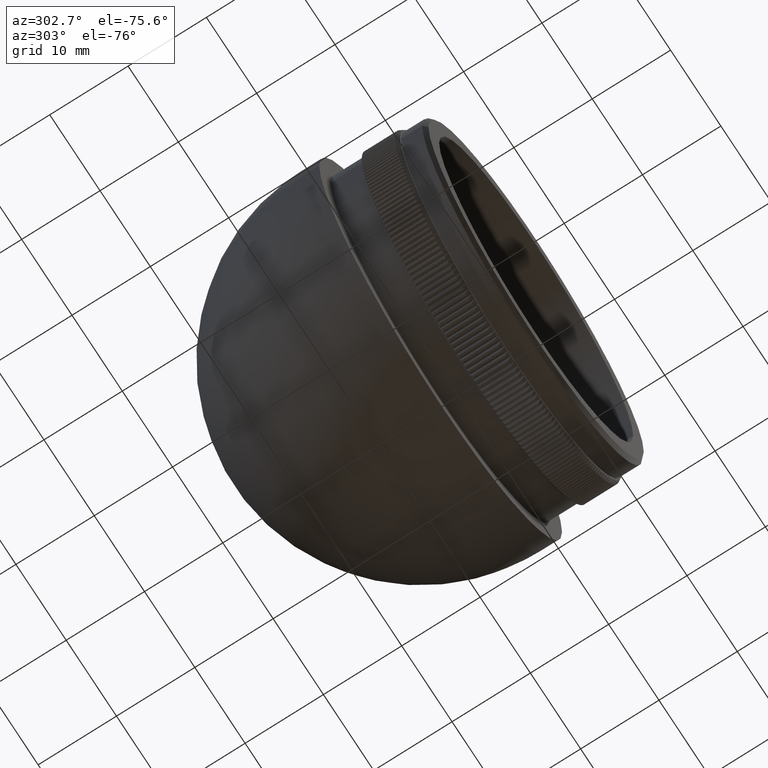
[diagram: clean part render]
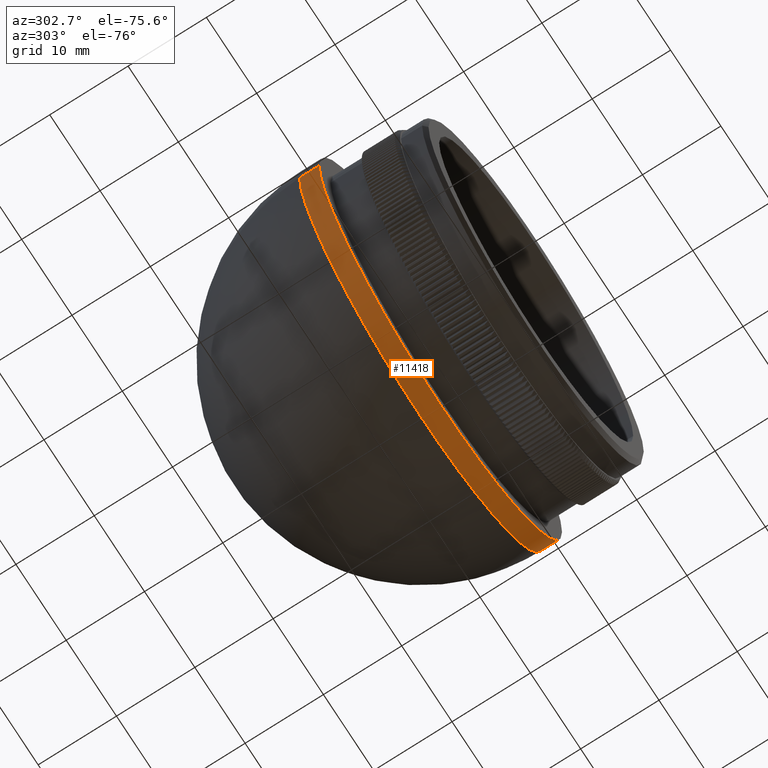
[diagram: same view with one face highlighted and labeled with its STEP entity id]
A machine part, auxiliary view. The second image highlights one B-rep face of the part: STEP entity #11418.
In plain terms, the highlighted cylindrical surface (partial cylindrical patch) has radius 24.15 mm, axis along (-0, -1, -0).
Its self-contained STEP definition (entity closure, byte-faithful):
#58 = CARTESIAN_POINT ( 'NONE',  ( -3.187359955546916400E-014, 12.20000000000003700, 0.0000000000000000000 ) ) ;
#2632 = CARTESIAN_POINT ( 'NONE',  ( 24.15000000000002000, 35.14999999999994900, 0.0000000000000000000 ) ) ;
#3267 = DIRECTION ( 'NONE',  ( -1.388827867340707400E-015, -1.000000000000000000, -0.0000000000000000000 ) ) ;
#3897 = DIRECTION ( 'NONE',  ( 1.000000000000000000, -1.364792796834753500E-015, 0.0000000000000000000 ) ) ;
#3922 = ORIENTED_EDGE ( 'NONE', *, *, #17600, .T. ) ;
#4550 = ORIENTED_EDGE ( 'NONE', *, *, #24849, .F. ) ;
#6245 = VERTEX_POINT ( 'NONE', #28163 ) ;
#7529 = VECTOR ( 'NONE', #24557, 1000.000000000000000 ) ;
#8160 = VERTEX_POINT ( 'NONE', #34861 ) ;
#8646 = CARTESIAN_POINT ( 'NONE',  ( -2.840152988711739300E-014, 14.70000000000004000, 0.0000000000000000000 ) ) ;
#10464 = CARTESIAN_POINT ( 'NONE',  ( -24.15000000000005500, 12.20000000000007000, 2.957522019940861500E-015 ) ) ;
#10511 = CYLINDRICAL_SURFACE ( 'NONE', #29509, 24.15000000000002000 ) ;
#11346 = ORIENTED_EDGE ( 'NONE', *, *, #34239, .F. ) ;
#11361 = CIRCLE ( 'NONE', #29588, 24.15000000000002700 ) ;
#11418 = ADVANCED_FACE ( 'NONE', ( #14972 ), #10511, .T. ) ;
#11800 = DIRECTION ( 'NONE',  ( -1.388827867340707400E-015, -1.000000000000000000, -0.0000000000000000000 ) ) ;
#13143 = VECTOR ( 'NONE', #40507, 1000.000000000000000 ) ;
#14968 = VERTEX_POINT ( 'NONE', #21139 ) ;
#14972 = FACE_OUTER_BOUND ( 'NONE', #16615, .T. ) ;
#16615 = EDGE_LOOP ( 'NONE', ( #4550, #3922, #21273, #11346 ) ) ;
#17578 = LINE ( 'NONE', #24670, #13143 ) ;
#17600 = EDGE_CURVE ( 'NONE', #14968, #6245, #40016, .T. ) ;
#18931 = DIRECTION ( 'NONE',  ( -1.388827867340707400E-015, -1.000000000000000000, -0.0000000000000000000 ) ) ;
#20926 = AXIS2_PLACEMENT_3D ( 'NONE', #8646, #11800, #30288 ) ;
#21139 = CARTESIAN_POINT ( 'NONE',  ( -24.15000000000002000, 14.70000000000007200, 2.957522019940860700E-015 ) ) ;
#21273 = ORIENTED_EDGE ( 'NONE', *, *, #29568, .T. ) ;
#22804 = LINE ( 'NONE', #2632, #7529 ) ;
#24557 = DIRECTION ( 'NONE',  ( -1.388827867340707400E-015, -1.000000000000000000, -0.0000000000000000000 ) ) ;
#24670 = CARTESIAN_POINT ( 'NONE',  ( -24.15000000000002000, 35.15000000000002000, 2.957522019940860300E-015 ) ) ;
#24849 = EDGE_CURVE ( 'NONE', #14968, #26960, #17578, .T. ) ;
#26960 = VERTEX_POINT ( 'NONE', #10464 ) ;
#28163 = CARTESIAN_POINT ( 'NONE',  ( 24.14999999999998800, 14.70000000000000600, 0.0000000000000000000 ) ) ;
#29509 = AXIS2_PLACEMENT_3D ( 'NONE', #37990, #3267, #37718 ) ;
#29568 = EDGE_CURVE ( 'NONE', #6245, #8160, #22804, .T. ) ;
#29588 = AXIS2_PLACEMENT_3D ( 'NONE', #58, #18931, #3897 ) ;
#30288 = DIRECTION ( 'NONE',  ( 1.000000000000000000, -1.364792796834754100E-015, 0.0000000000000000000 ) ) ;
#34239 = EDGE_CURVE ( 'NONE', #26960, #8160, #11361, .T. ) ;
#34861 = CARTESIAN_POINT ( 'NONE',  ( 24.14999999999999500, 12.20000000000000500, 0.0000000000000000000 ) ) ;
#37718 = DIRECTION ( 'NONE',  ( 1.000000000000000000, -1.436623996668162100E-015, 0.0000000000000000000 ) ) ;
#37990 = CARTESIAN_POINT ( 'NONE',  ( 0.0000000000000000000, 35.14999999999998400, 0.0000000000000000000 ) ) ;
#40016 = CIRCLE ( 'NONE', #20926, 24.15000000000001600 ) ;
#40507 = DIRECTION ( 'NONE',  ( -1.388827867340707400E-015, -1.000000000000000000, -0.0000000000000000000 ) ) ;